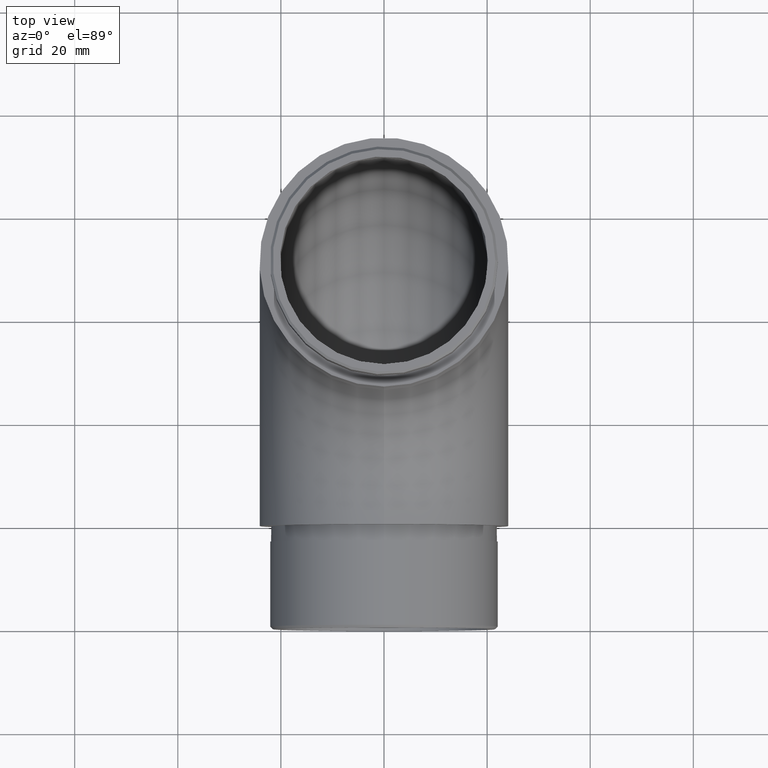
[diagram: clean part render]
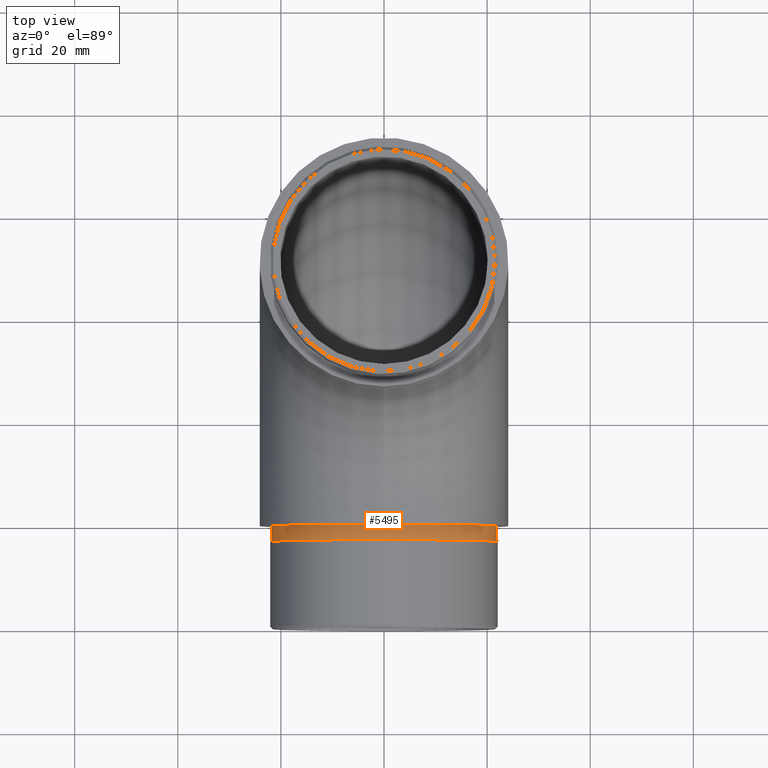
[diagram: same view with one face highlighted and labeled with its STEP entity id]
A machine part, top view. The second image highlights one B-rep face of the part: STEP entity #5495.
In plain terms, the highlighted cylindrical surface (bore or boss wall) has radius 21.9 mm, axis along (-0, 1, -0).
Its self-contained STEP definition (entity closure, byte-faithful):
#272 = VERTEX_POINT ( 'NONE', #11484 ) ;
#705 = CIRCLE ( 'NONE', #11435, 21.90000000000000200 ) ;
#964 = DIRECTION ( 'NONE',  ( 0.0000000000000000000, -1.000000000000000000, 0.0000000000000000000 ) ) ;
#1630 = CIRCLE ( 'NONE', #1895, 21.90000000000000200 ) ;
#1709 = EDGE_CURVE ( 'NONE', #3712, #3712, #705, .T. ) ;
#1895 = AXIS2_PLACEMENT_3D ( 'NONE', #4539, #964, #4342 ) ;
#1957 = DIRECTION ( 'NONE',  ( -0.0000000000000000000, 1.000000000000000000, -0.0000000000000000000 ) ) ;
#3090 = CARTESIAN_POINT ( 'NONE',  ( 0.0000000000000000000, 0.0000000000000000000, 46.05000000000001100 ) ) ;
#3180 = EDGE_LOOP ( 'NONE', ( #9513 ) ) ;
#3712 = VERTEX_POINT ( 'NONE', #3090 ) ;
#4342 = DIRECTION ( 'NONE',  ( 0.0000000000000000000, 0.0000000000000000000, -1.000000000000000000 ) ) ;
#4539 = CARTESIAN_POINT ( 'NONE',  ( 0.0000000000000000000, -3.000000000000000000, 24.15000000000001300 ) ) ;
#5495 = ADVANCED_FACE ( 'NONE', ( #11819, #8694 ), #11238, .T. ) ;
#7435 = EDGE_CURVE ( 'NONE', #272, #272, #1630, .T. ) ;
#7940 = AXIS2_PLACEMENT_3D ( 'NONE', #10311, #1957, #11143 ) ;
#8694 = FACE_OUTER_BOUND ( 'NONE', #10896, .T. ) ;
#9513 = ORIENTED_EDGE ( 'NONE', *, *, #7435, .F. ) ;
#10101 = CARTESIAN_POINT ( 'NONE',  ( 0.0000000000000000000, 0.0000000000000000000, 24.15000000000001300 ) ) ;
#10311 = CARTESIAN_POINT ( 'NONE',  ( 0.0000000000000000000, -3.000000000000000000, 24.15000000000001300 ) ) ;
#10896 = EDGE_LOOP ( 'NONE', ( #11188 ) ) ;
#10924 = DIRECTION ( 'NONE',  ( -0.0000000000000000000, -1.000000000000000000, -0.0000000000000000000 ) ) ;
#10958 = DIRECTION ( 'NONE',  ( 0.0000000000000000000, 0.0000000000000000000, 1.000000000000000000 ) ) ;
#11143 = DIRECTION ( 'NONE',  ( 0.0000000000000000000, 0.0000000000000000000, 1.000000000000000000 ) ) ;
#11188 = ORIENTED_EDGE ( 'NONE', *, *, #1709, .T. ) ;
#11238 = CYLINDRICAL_SURFACE ( 'NONE', #7940, 21.90000000000000200 ) ;
#11435 = AXIS2_PLACEMENT_3D ( 'NONE', #10101, #10924, #10958 ) ;
#11484 = CARTESIAN_POINT ( 'NONE',  ( 0.0000000000000000000, -3.000000000000000000, 2.250000000000008900 ) ) ;
#11819 = FACE_OUTER_BOUND ( 'NONE', #3180, .T. ) ;